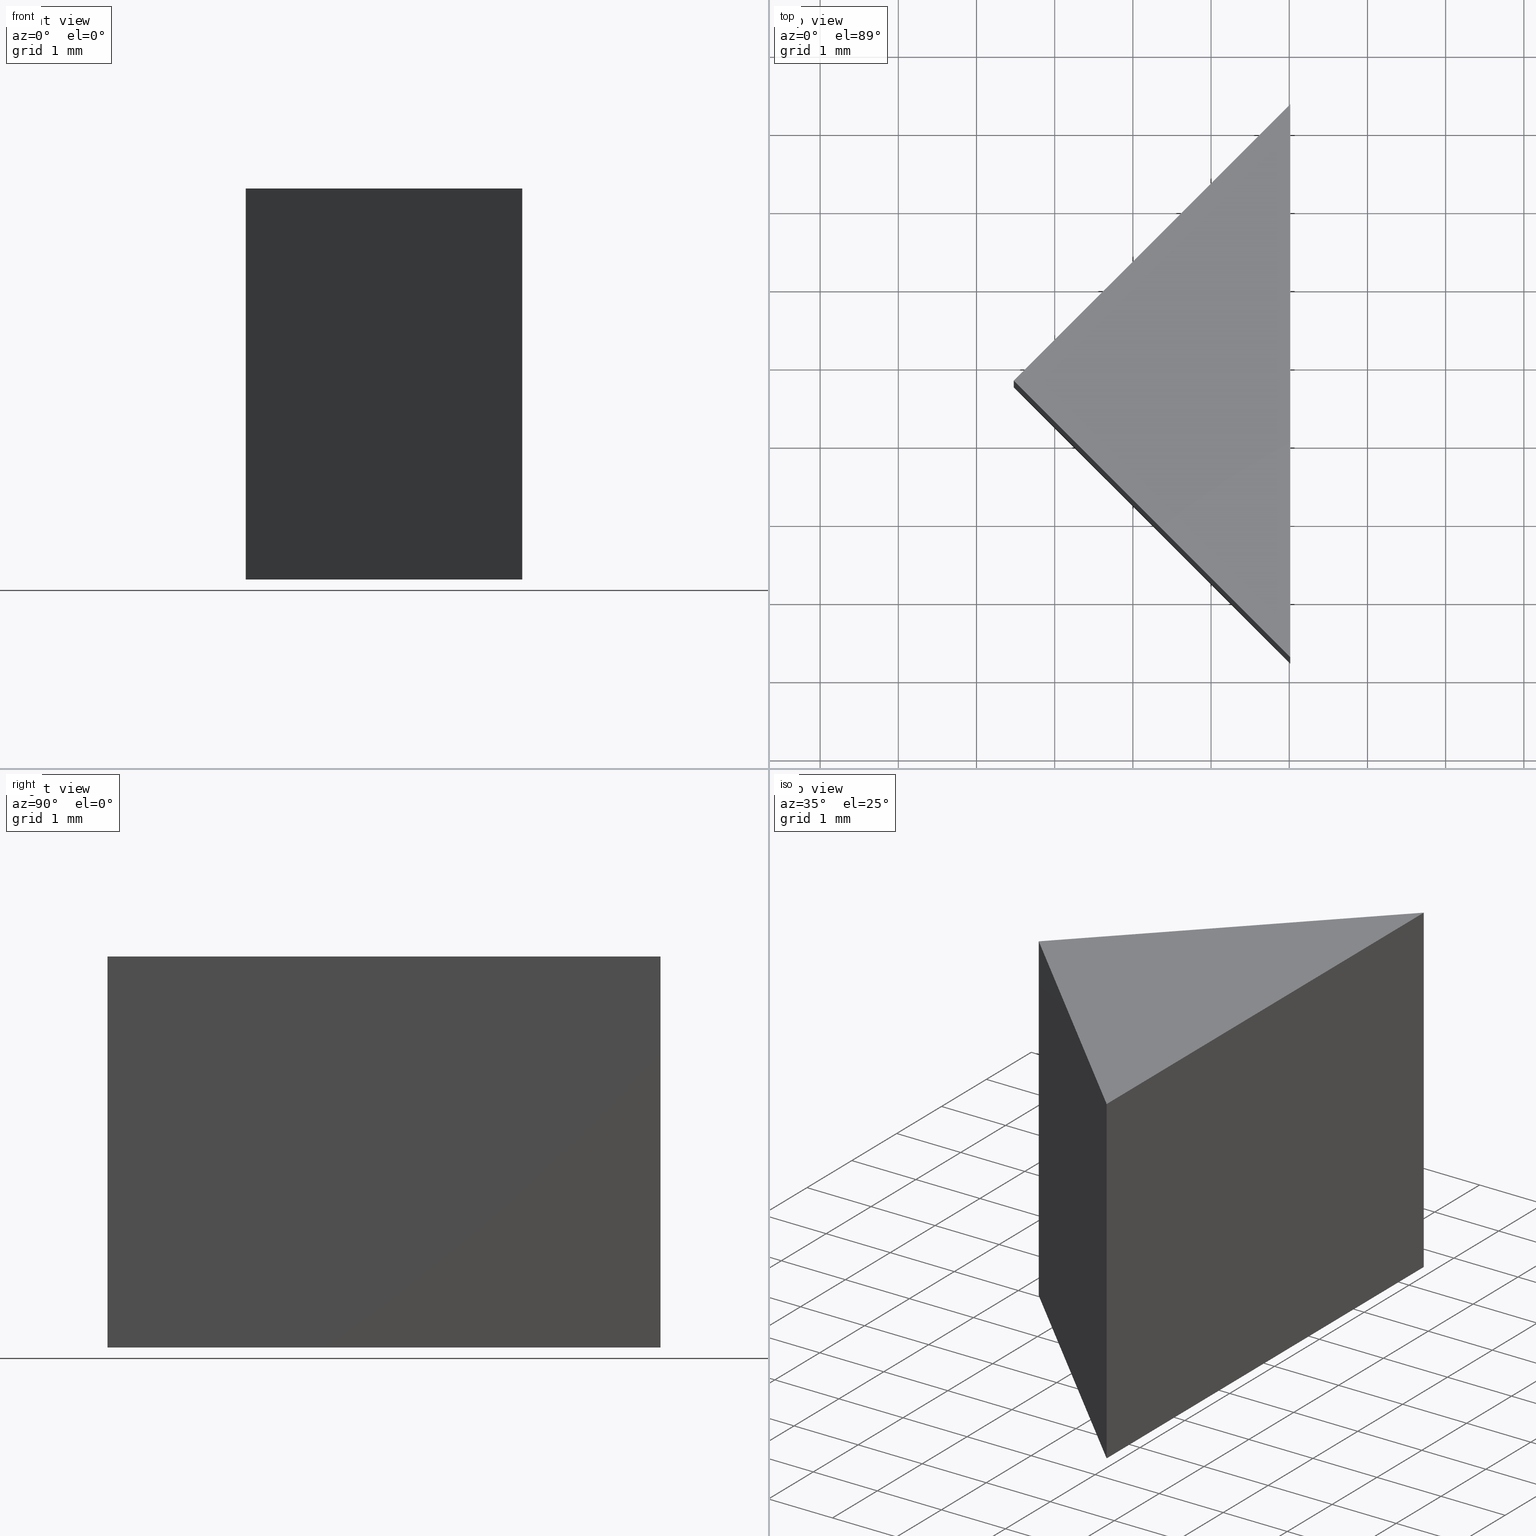
[diagram: canonical four-view strip — front | top / right | iso, engineering-drawing reading convention]
A machine part, canonical four-view strip (front | top / right | iso — engineering-drawing reading convention). The complete STEP part file that produces these views, byte-faithful:
ISO-10303-21;
HEADER;
FILE_DESCRIPTION (( 'STEP AP214' ),
    '1' );
FILE_NAME ('300000.STEP',
    '2019-08-12T07:39:34',
    ( '' ),
    ( '' ),
    'SwSTEP 2.0',
    'SolidWorks 2016',
    '' );
FILE_SCHEMA (( 'AUTOMOTIVE_DESIGN' ));
ENDSEC;

DATA;
#1 = ORIENTED_EDGE ( 'NONE', *, *, #67, .T. ) ;
#2 = EDGE_LOOP ( 'NONE', ( #149, #57, #53 ) ) ;
#3 = VECTOR ( 'NONE', #142, 999.9999999999998900 ) ;
#4 = VERTEX_POINT ( 'NONE', #12 ) ;
#5 = PRODUCT_DEFINITION ( 'δ֪', '', #90, #72 ) ;
#6 = ORIENTED_EDGE ( 'NONE', *, *, #136, .T. ) ;
#7 =( GEOMETRIC_REPRESENTATION_CONTEXT ( 3 ) GLOBAL_UNCERTAINTY_ASSIGNED_CONTEXT ( ( #120 ) ) GLOBAL_UNIT_ASSIGNED_CONTEXT ( ( #130, #81, #162 ) ) REPRESENTATION_CONTEXT ( 'NONE', 'WORKASPACE' ) );
#8 = FACE_OUTER_BOUND ( 'NONE', #2, .T. ) ;
#9 = PLANE ( 'NONE',  #76 ) ;
#10 = CARTESIAN_POINT ( 'NONE',  ( 59.01220385852765600, 10.24015864690132300, 0.0000000000000000000 ) ) ;
#11 = EDGE_CURVE ( 'NONE', #19, #111, #126, .T. ) ;
#12 = CARTESIAN_POINT ( 'NONE',  ( 59.01220385852767000, 17.31122645876679700, 0.0000000000000000000 ) ) ;
#13 = VERTEX_POINT ( 'NONE', #61 ) ;
#14 = CARTESIAN_POINT ( 'NONE',  ( 55.47666995259492500, 13.77569255283406200, 5.000000000000000000 ) ) ;
#15 = FILL_AREA_STYLE_COLOUR ( '', #98 ) ;
#16 = APPLICATION_CONTEXT ( 'automotive_design' ) ;
#17 = ADVANCED_BREP_SHAPE_REPRESENTATION ( '300000', ( #139, #134 ), #51 ) ;
#18 = STYLED_ITEM ( 'NONE', ( #77 ), #139 ) ;
#19 = VERTEX_POINT ( 'NONE', #146 ) ;
#20 = LINE ( 'NONE', #160, #133 ) ;
#21 = MECHANICAL_DESIGN_GEOMETRIC_PRESENTATION_REPRESENTATION (  '', ( #18 ), #65 ) ;
#22 = CARTESIAN_POINT ( 'NONE',  ( 59.01220385852765600, 10.24015864690132300, 5.000000000000000000 ) ) ;
#23 = CARTESIAN_POINT ( 'NONE',  ( 55.47666995259492500, 13.77569255283406200, 5.000000000000000000 ) ) ;
#24 = PLANE ( 'NONE',  #32 ) ;
#25 = DIRECTION ( 'NONE',  ( 0.7071067811865486800, 0.7071067811865464600, 0.0000000000000000000 ) ) ;
#26 = SURFACE_SIDE_STYLE ('',( #75 ) ) ;
#27 = DIRECTION ( 'NONE',  ( 1.962615573354719300E-015, 1.000000000000000000, 0.0000000000000000000 ) ) ;
#28 = VECTOR ( 'NONE', #63, 1000.000000000000000 ) ;
#29 = CARTESIAN_POINT ( 'NONE',  ( 59.01220385852765600, 10.24015864690132300, 5.000000000000000000 ) ) ;
#30 = ADVANCED_FACE ( 'NONE', ( #153 ), #39, .F. ) ;
#31 = AXIS2_PLACEMENT_3D ( 'NONE', #59, #103, #156 ) ;
#32 = AXIS2_PLACEMENT_3D ( 'NONE', #96, #114, #35 ) ;
#33 = LINE ( 'NONE', #23, #46 ) ;
#34 = PRODUCT_RELATED_PRODUCT_CATEGORY ( 'part', '', ( #80 ) ) ;
#35 = DIRECTION ( 'NONE',  ( -1.962615573354719300E-015, -1.000000000000000000, 0.0000000000000000000 ) ) ;
#36 = SHAPE_DEFINITION_REPRESENTATION ( #106, #17 ) ;
#37 = EDGE_LOOP ( 'NONE', ( #41, #68, #137, #87 ) ) ;
#38 = DIRECTION ( 'NONE',  ( 1.000000000000000000, 0.0000000000000000000, 0.0000000000000000000 ) ) ;
#39 = PLANE ( 'NONE',  #148 ) ;
#40 = EDGE_CURVE ( 'NONE', #111, #13, #33, .T. ) ;
#41 = ORIENTED_EDGE ( 'NONE', *, *, #124, .T. ) ;
#42 = VECTOR ( 'NONE', #27, 1000.000000000000000 ) ;
#43 = FILL_AREA_STYLE ('',( #15 ) ) ;
#44 = SURFACE_STYLE_FILL_AREA ( #43 ) ;
#45 = LINE ( 'NONE', #22, #141 ) ;
#46 = VECTOR ( 'NONE', #128, 1000.000000000000000 ) ;
#47 = PRESENTATION_LAYER_ASSIGNMENT (  '', '', ( #18 ) ) ;
#48 = CARTESIAN_POINT ( 'NONE',  ( 55.47666995259492500, 13.77569255283406200, 5.000000000000000000 ) ) ;
#49 = DIRECTION ( 'NONE',  ( -0.0000000000000000000, -0.0000000000000000000, -1.000000000000000000 ) ) ;
#50 = PLANE ( 'NONE',  #31 ) ;
#51 =( GEOMETRIC_REPRESENTATION_CONTEXT ( 3 ) GLOBAL_UNCERTAINTY_ASSIGNED_CONTEXT ( ( #56 ) ) GLOBAL_UNIT_ASSIGNED_CONTEXT ( ( #168, #102, #60 ) ) REPRESENTATION_CONTEXT ( 'NONE', 'WORKASPACE' ) );
#52 = APPLICATION_PROTOCOL_DEFINITION ( 'draft international standard', 'automotive_design', 1998, #132 ) ;
#53 = ORIENTED_EDGE ( 'NONE', *, *, #11, .T. ) ;
#54 = PRODUCT_CONTEXT ( 'NONE', #132, 'mechanical' ) ;
#55 = MECHANICAL_DESIGN_GEOMETRIC_PRESENTATION_REPRESENTATION (  '', ( #88 ), #7 ) ;
#56 = UNCERTAINTY_MEASURE_WITH_UNIT (LENGTH_MEASURE( 1.000000000000000100E-005 ), #168, 'distance_accuracy_value', 'NONE');
#57 = ORIENTED_EDGE ( 'NONE', *, *, #58, .T. ) ;
#58 = EDGE_CURVE ( 'NONE', #100, #19, #155, .T. ) ;
#59 = CARTESIAN_POINT ( 'NONE',  ( 55.47666995259492500, 13.77569255283406200, 5.000000000000000000 ) ) ;
#60 =( NAMED_UNIT ( * ) SI_UNIT ( $, .STERADIAN. ) SOLID_ANGLE_UNIT ( ) );
#61 = CARTESIAN_POINT ( 'NONE',  ( 55.47666995259492500, 13.77569255283406200, 0.0000000000000000000 ) ) ;
#62 = EDGE_LOOP ( 'NONE', ( #86, #74, #145, #1 ) ) ;
#63 = DIRECTION ( 'NONE',  ( -0.0000000000000000000, -0.0000000000000000000, -1.000000000000000000 ) ) ;
#64 = CARTESIAN_POINT ( 'NONE',  ( 55.47666995259492500, 13.77569255283406200, 5.000000000000000000 ) ) ;
#65 =( GEOMETRIC_REPRESENTATION_CONTEXT ( 3 ) GLOBAL_UNCERTAINTY_ASSIGNED_CONTEXT ( ( #73 ) ) GLOBAL_UNIT_ASSIGNED_CONTEXT ( ( #78, #115, #99 ) ) REPRESENTATION_CONTEXT ( 'NONE', 'WORKASPACE' ) );
#66 = SURFACE_STYLE_USAGE ( .BOTH. , #84 ) ;
#67 = EDGE_CURVE ( 'NONE', #19, #4, #70, .T. ) ;
#68 = ORIENTED_EDGE ( 'NONE', *, *, #152, .F. ) ;
#69 = DIRECTION ( 'NONE',  ( 0.7071067811865468000, -0.7071067811865483500, 0.0000000000000000000 ) ) ;
#70 = LINE ( 'NONE', #92, #28 ) ;
#71 = EDGE_CURVE ( 'NONE', #111, #100, #118, .T. ) ;
#72 = PRODUCT_DEFINITION_CONTEXT ( 'detailed design', #16, 'design' ) ;
#73 = UNCERTAINTY_MEASURE_WITH_UNIT (LENGTH_MEASURE( 1.000000000000000100E-005 ), #78, 'distance_accuracy_value', 'NONE');
#74 = ORIENTED_EDGE ( 'NONE', *, *, #40, .F. ) ;
#75 = SURFACE_STYLE_FILL_AREA ( #112 ) ;
#76 = AXIS2_PLACEMENT_3D ( 'NONE', #166, #158, #38 ) ;
#77 = PRESENTATION_STYLE_ASSIGNMENT (( #91 ) ) ;
#78 =( LENGTH_UNIT ( ) NAMED_UNIT ( * ) SI_UNIT ( .MILLI., .METRE. ) );
#79 = DIRECTION ( 'NONE',  ( 0.7071067811865468000, -0.7071067811865483500, 0.0000000000000000000 ) ) ;
#80 = PRODUCT ( '300000', '300000', '', ( #54 ) ) ;
#81 =( NAMED_UNIT ( * ) PLANE_ANGLE_UNIT ( ) SI_UNIT ( $, .RADIAN. ) );
#82 = CLOSED_SHELL ( 'NONE', ( #97, #131, #30, #169, #113 ) ) ;
#83 = ORIENTED_EDGE ( 'NONE', *, *, #58, .F. ) ;
#84 = SURFACE_SIDE_STYLE ('',( #44 ) ) ;
#85 = FACE_OUTER_BOUND ( 'NONE', #108, .T. ) ;
#86 = ORIENTED_EDGE ( 'NONE', *, *, #123, .T. ) ;
#87 = ORIENTED_EDGE ( 'NONE', *, *, #40, .T. ) ;
#88 = STYLED_ITEM ( 'NONE', ( #125 ), #17 ) ;
#89 = ORIENTED_EDGE ( 'NONE', *, *, #136, .F. ) ;
#90 = PRODUCT_DEFINITION_FORMATION_WITH_SPECIFIED_SOURCE ( '�κ�', '', #80, .NOT_KNOWN. ) ;
#91 = SURFACE_STYLE_USAGE ( .BOTH. , #26 ) ;
#92 = CARTESIAN_POINT ( 'NONE',  ( 59.01220385852767000, 17.31122645876679700, 5.000000000000000000 ) ) ;
#93 = FACE_OUTER_BOUND ( 'NONE', #37, .T. ) ;
#94 = CARTESIAN_POINT ( 'NONE',  ( 59.01220385852765600, 10.24015864690132300, 5.000000000000000000 ) ) ;
#95 = VECTOR ( 'NONE', #127, 1000.000000000000000 ) ;
#96 = CARTESIAN_POINT ( 'NONE',  ( 59.01220385852765600, 10.24015864690132300, 5.000000000000000000 ) ) ;
#97 = ADVANCED_FACE ( 'NONE', ( #93 ), #50, .F. ) ;
#98 = COLOUR_RGB ( '',1.000000000000000000, 1.000000000000000000, 1.000000000000000000 ) ;
#99 =( NAMED_UNIT ( * ) SI_UNIT ( $, .STERADIAN. ) SOLID_ANGLE_UNIT ( ) );
#100 = VERTEX_POINT ( 'NONE', #29 ) ;
#101 = DIRECTION ( 'NONE',  ( 0.7071067811865464600, -0.7071067811865486800, 0.0000000000000000000 ) ) ;
#102 =( NAMED_UNIT ( * ) PLANE_ANGLE_UNIT ( ) SI_UNIT ( $, .RADIAN. ) );
#103 = DIRECTION ( 'NONE',  ( 0.7071067811865483500, 0.7071067811865468000, -0.0000000000000000000 ) ) ;
#104 = APPLICATION_PROTOCOL_DEFINITION ( 'draft international standard', 'automotive_design', 1998, #16 ) ;
#105 = VECTOR ( 'NONE', #79, 999.9999999999998900 ) ;
#106 = PRODUCT_DEFINITION_SHAPE ( 'NONE', 'NONE',  #5 ) ;
#107 = PRESENTATION_LAYER_ASSIGNMENT (  '', '', ( #88 ) ) ;
#108 = EDGE_LOOP ( 'NONE', ( #122, #117, #89 ) ) ;
#109 = VECTOR ( 'NONE', #157, 999.9999999999998900 ) ;
#110 = CARTESIAN_POINT ( 'NONE',  ( 59.01220385852765600, 10.24015864690132300, 0.0000000000000000000 ) ) ;
#111 = VERTEX_POINT ( 'NONE', #116 ) ;
#112 = FILL_AREA_STYLE ('',( #140 ) ) ;
#113 = ADVANCED_FACE ( 'NONE', ( #85 ), #165, .F. ) ;
#114 = DIRECTION ( 'NONE',  ( -1.000000000000000000, 1.962615573354719300E-015, 0.0000000000000000000 ) ) ;
#115 =( NAMED_UNIT ( * ) PLANE_ANGLE_UNIT ( ) SI_UNIT ( $, .RADIAN. ) );
#116 = CARTESIAN_POINT ( 'NONE',  ( 55.47666995259492500, 13.77569255283406200, 5.000000000000000000 ) ) ;
#117 = ORIENTED_EDGE ( 'NONE', *, *, #123, .F. ) ;
#118 = LINE ( 'NONE', #14, #105 ) ;
#119 = CARTESIAN_POINT ( 'NONE',  ( 0.0000000000000000000, 0.0000000000000000000, 0.0000000000000000000 ) ) ;
#120 = UNCERTAINTY_MEASURE_WITH_UNIT (LENGTH_MEASURE( 1.000000000000000100E-005 ), #130, 'distance_accuracy_value', 'NONE');
#121 = CARTESIAN_POINT ( 'NONE',  ( 0.0000000000000000000, 0.0000000000000000000, 0.0000000000000000000 ) ) ;
#122 = ORIENTED_EDGE ( 'NONE', *, *, #124, .F. ) ;
#123 = EDGE_CURVE ( 'NONE', #4, #13, #167, .T. ) ;
#124 = EDGE_CURVE ( 'NONE', #13, #135, #20, .T. ) ;
#125 = PRESENTATION_STYLE_ASSIGNMENT (( #66 ) ) ;
#126 = LINE ( 'NONE', #48, #109 ) ;
#127 = DIRECTION ( 'NONE',  ( 1.962615573354719300E-015, 1.000000000000000000, 0.0000000000000000000 ) ) ;
#128 = DIRECTION ( 'NONE',  ( -0.0000000000000000000, -0.0000000000000000000, -1.000000000000000000 ) ) ;
#129 = DIRECTION ( 'NONE',  ( -0.0000000000000000000, 0.0000000000000000000, 1.000000000000000000 ) ) ;
#130 =( LENGTH_UNIT ( ) NAMED_UNIT ( * ) SI_UNIT ( .MILLI., .METRE. ) );
#131 = ADVANCED_FACE ( 'NONE', ( #151 ), #24, .F. ) ;
#132 = APPLICATION_CONTEXT ( 'automotive_design' ) ;
#133 = VECTOR ( 'NONE', #69, 999.9999999999998900 ) ;
#134 = AXIS2_PLACEMENT_3D ( 'NONE', #121, #144, #147 ) ;
#135 = VERTEX_POINT ( 'NONE', #10 ) ;
#136 = EDGE_CURVE ( 'NONE', #135, #4, #138, .T. ) ;
#137 = ORIENTED_EDGE ( 'NONE', *, *, #71, .F. ) ;
#138 = LINE ( 'NONE', #110, #95 ) ;
#139 = MANIFOLD_SOLID_BREP ( '͹̨-����1', #82 ) ;
#140 = FILL_AREA_STYLE_COLOUR ( '', #164 ) ;
#141 = VECTOR ( 'NONE', #49, 1000.000000000000000 ) ;
#142 = DIRECTION ( 'NONE',  ( -0.7071067811865486800, -0.7071067811865464600, -0.0000000000000000000 ) ) ;
#143 = DIRECTION ( 'NONE',  ( 1.000000000000000000, 0.0000000000000000000, 0.0000000000000000000 ) ) ;
#144 = DIRECTION ( 'NONE',  ( 0.0000000000000000000, 0.0000000000000000000, 1.000000000000000000 ) ) ;
#145 = ORIENTED_EDGE ( 'NONE', *, *, #11, .F. ) ;
#146 = CARTESIAN_POINT ( 'NONE',  ( 59.01220385852767000, 17.31122645876679700, 5.000000000000000000 ) ) ;
#147 = DIRECTION ( 'NONE',  ( 1.000000000000000000, 0.0000000000000000000, 0.0000000000000000000 ) ) ;
#148 = AXIS2_PLACEMENT_3D ( 'NONE', #64, #101, #25 ) ;
#149 = ORIENTED_EDGE ( 'NONE', *, *, #71, .T. ) ;
#150 = ORIENTED_EDGE ( 'NONE', *, *, #152, .T. ) ;
#151 = FACE_OUTER_BOUND ( 'NONE', #163, .T. ) ;
#152 = EDGE_CURVE ( 'NONE', #100, #135, #45, .T. ) ;
#153 = FACE_OUTER_BOUND ( 'NONE', #62, .T. ) ;
#154 = AXIS2_PLACEMENT_3D ( 'NONE', #119, #129, #143 ) ;
#155 = LINE ( 'NONE', #94, #42 ) ;
#156 = DIRECTION ( 'NONE',  ( -0.7071067811865468000, 0.7071067811865483500, 0.0000000000000000000 ) ) ;
#157 = DIRECTION ( 'NONE',  ( -0.7071067811865486800, -0.7071067811865464600, -0.0000000000000000000 ) ) ;
#158 = DIRECTION ( 'NONE',  ( -0.0000000000000000000, 0.0000000000000000000, 1.000000000000000000 ) ) ;
#159 = ORIENTED_EDGE ( 'NONE', *, *, #67, .F. ) ;
#160 = CARTESIAN_POINT ( 'NONE',  ( 55.47666995259492500, 13.77569255283406200, 0.0000000000000000000 ) ) ;
#161 = CARTESIAN_POINT ( 'NONE',  ( 55.47666995259492500, 13.77569255283406200, 0.0000000000000000000 ) ) ;
#162 =( NAMED_UNIT ( * ) SI_UNIT ( $, .STERADIAN. ) SOLID_ANGLE_UNIT ( ) );
#163 = EDGE_LOOP ( 'NONE', ( #6, #159, #83, #150 ) ) ;
#164 = COLOUR_RGB ( '',1.000000000000000000, 1.000000000000000000, 1.000000000000000000 ) ;
#165 = PLANE ( 'NONE',  #154 ) ;
#166 = CARTESIAN_POINT ( 'NONE',  ( 0.0000000000000000000, 0.0000000000000000000, 5.000000000000000000 ) ) ;
#167 = LINE ( 'NONE', #161, #3 ) ;
#168 =( LENGTH_UNIT ( ) NAMED_UNIT ( * ) SI_UNIT ( .MILLI., .METRE. ) );
#169 = ADVANCED_FACE ( 'NONE', ( #8 ), #9, .T. ) ;
ENDSEC;
END-ISO-10303-21;
